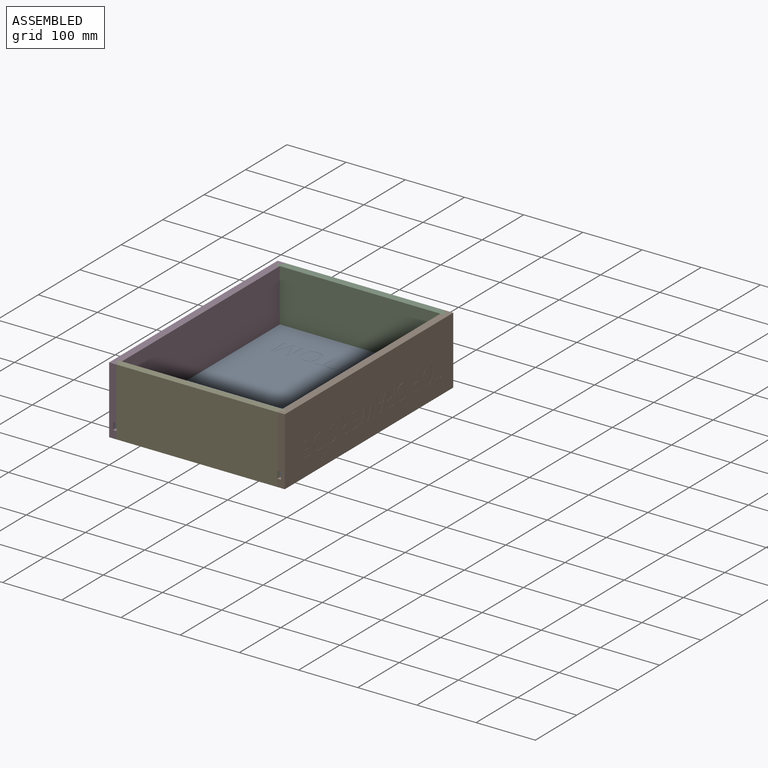
[diagram: assembled view]
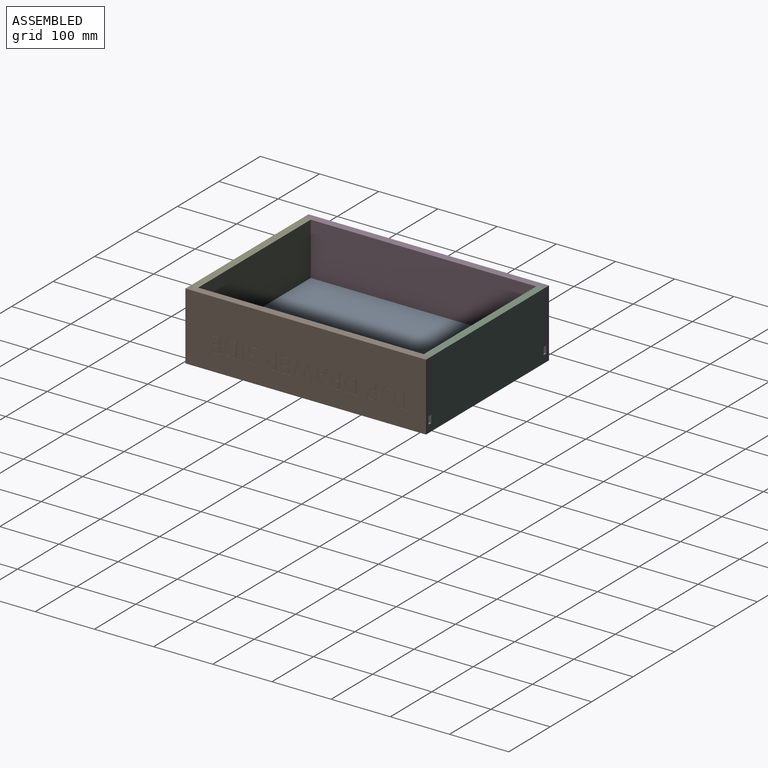
[diagram: assembled view, second angle]
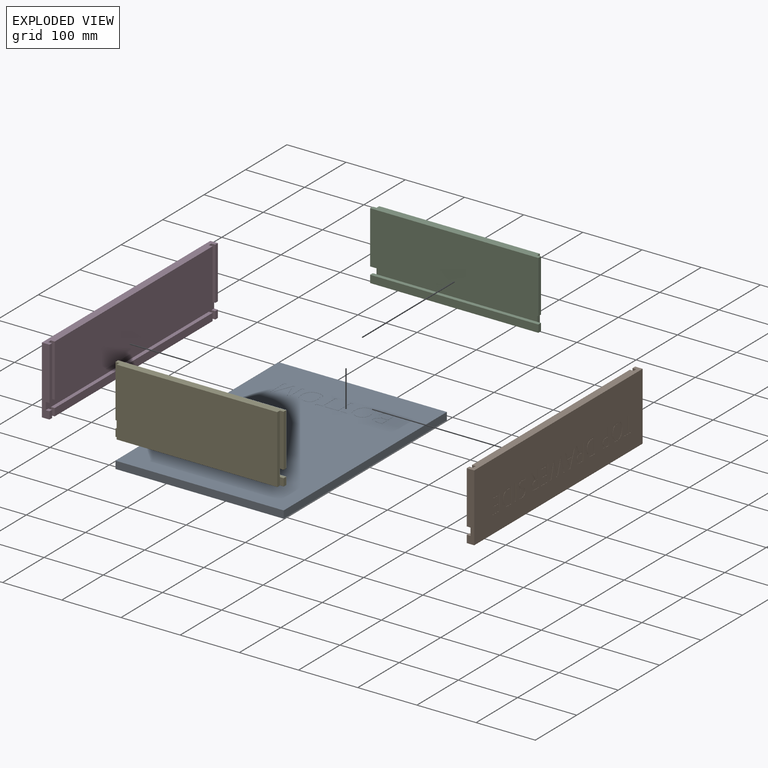
[diagram: exploded view]
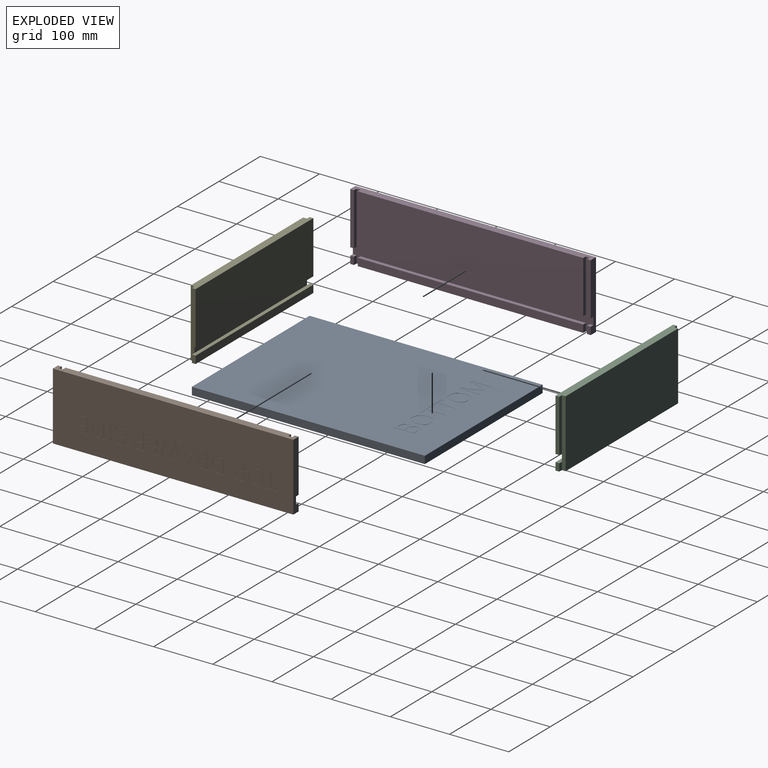
[diagram: exploded view, second angle]
ASSEMBLY  parts=5 mates=4
PART A: 107 faces, bbox 284.2x393.7x12.7 mm
  f0: plane 393.7x284.16mm, normal (0,0,1), area 108487.3mm2, adj f1,f2,f3,f4,f6,f7,f8,f9
  f1: plane 393.7x12.7mm, normal (1,0,0), area 5000mm2, adj f0,f2,f4,f5
  f2: plane 284.16x12.7mm, normal (0,1,0), area 3608.9mm2, adj f0,f1,f3,f5
  f3: plane 393.7x12.7mm, normal (-1,0,0), area 5000mm2, adj f0,f2,f4,f5
  f4: plane 284.16x12.7mm, normal (0,-1,0), area 3608.9mm2, adj f0,f1,f3,f5
  f5: plane 393.7x284.16mm, normal (0,0,-1), area 111874.8mm2, adj f1,f2,f3,f4
  f6: plane 3.93x0.25mm, normal (0,-1,0), area 1mm2, adj f0,f7,f13,f14
  f7: plane 30.31x0.25mm, normal (1,0,0), area 7.7mm2, adj f0,f6,f8,f14
  f8: plane 10.7x0.25mm, normal (0,-1,0), area 2.7mm2, adj f0,f7,f9,f14
  f9: plane 3.49x0.25mm, normal (1,0,0), area 0.9mm2, adj f0,f8,f10,f14
  f10: plane 25.34x0.25mm, normal (0,1,0), area 6.4mm2, adj f0,f9,f11,f14
  f11: plane 3.49x0.25mm, normal (-1,0,0), area 0.9mm2, adj f0,f10,f12,f14
  f12: plane 10.7x0.25mm, normal (0,-1,0), area 2.7mm2, adj f0,f11,f13,f14
  f13: plane 30.31x0.25mm, normal (-1,0,0), area 7.7mm2, adj f0,f6,f12,f14
  f14: plane 33.8x25.34mm, normal (0,0,1), area 207.5mm2, adj f6,f7,f8,f9,f10,f11,f12,f13
  f15: extruded ~10.42x2.93mm, area 2.8mm2, adj f16,f30,f31,f104
  f16: extruded ~10.32x2.93mm, area 2.8mm2, adj f15,f17,f31,f104
  f17: extruded ~8.54x3.55mm, area 2.4mm2, adj f16,f18,f31,f104
  f18: extruded ~8.45x3.53mm, area 2.4mm2, adj f17,f19,f31,f104
  f19: extruded ~10.35x2.86mm, area 2.8mm2, adj f18,f20,f31,f104
  f20: extruded ~10.43x2.87mm, area 2.8mm2, adj f19,f21,f31,f104
  f21: extruded ~8.48x3.54mm, area 2.4mm2, adj f20,f30,f31,f104
  f22: extruded ~12.76x4.11mm, area 3.5mm2, adj f0,f23,f29,f31
  f23: extruded ~12.76x4.09mm, area 3.5mm2, adj f0,f22,f24,f31
  f24: extruded ~11.38x4.62mm, area 3.2mm2, adj f0,f23,f25,f31
  f25: extruded ~11.55x4.54mm, area 3.3mm2, adj f0,f24,f26,f31
  f26: extruded ~12.8x4.07mm, area 3.5mm2, adj f0,f25,f27,f31
  f27: extruded ~12.89x4.06mm, area 3.5mm2, adj f0,f26,f28,f31
  f28: extruded ~11.52x4.57mm, area 3.2mm2, adj f0,f27,f29,f31
  f29: extruded ~11.41x4.65mm, area 3.2mm2, adj f0,f22,f28,f31
  f30: extruded ~8.5x3.55mm, area 2.4mm2, adj f15,f21,f31,f104
  f31: plane 34.8x31.09mm, normal (0,0,1), area 361.5mm2, adj f15,f16,f17,f18,f19,f20,f21,f22
  f32: extruded ~10.42x2.93mm, area 2.8mm2, adj f33,f47,f48,f105
  f33: extruded ~10.32x2.93mm, area 2.8mm2, adj f32,f34,f48,f105
  f34: extruded ~8.54x3.55mm, area 2.4mm2, adj f33,f35,f48,f105
  f35: extruded ~8.45x3.53mm, area 2.4mm2, adj f34,f36,f48,f105
  f36: extruded ~10.35x2.86mm, area 2.8mm2, adj f35,f37,f48,f105
  f37: extruded ~10.43x2.87mm, area 2.8mm2, adj f36,f38,f48,f105
  f38: extruded ~8.48x3.54mm, area 2.4mm2, adj f37,f47,f48,f105
  f39: extruded ~12.76x4.11mm, area 3.5mm2, adj f0,f40,f46,f48
  f40: extruded ~12.76x4.09mm, area 3.5mm2, adj f0,f39,f41,f48
  f41: extruded ~11.38x4.62mm, area 3.2mm2, adj f0,f40,f42,f48
  f42: extruded ~11.55x4.54mm, area 3.3mm2, adj f0,f41,f43,f48
  f43: extruded ~12.8x4.07mm, area 3.5mm2, adj f0,f42,f44,f48
  f44: extruded ~12.89x4.06mm, area 3.5mm2, adj f0,f43,f45,f48
  f45: extruded ~11.52x4.57mm, area 3.2mm2, adj f0,f44,f46,f48
  f46: extruded ~11.41x4.65mm, area 3.2mm2, adj f0,f39,f45,f48
  f47: extruded ~8.5x3.55mm, area 2.4mm2, adj f32,f38,f48,f105
  f48: plane 34.8x31.09mm, normal (0,0,1), area 361.5mm2, adj f32,f33,f34,f35,f36,f37,f38,f39
  f49: plane 29.96x11.47mm, normal (-0.93,-0.36,0), area 8.1mm2, adj f0,f50,f66,f67
  f50: plane 3.17x0.25mm, normal (0,-1,0), area 0.8mm2, adj f0,f49,f51,f67
  f51: plane 29.92x11.56mm, normal (0.93,-0.36,0), area 8.1mm2, adj f0,f50,f52,f67
  f52: plane 0.25x0.19mm, normal (0,-1,0), area 0mm2, adj f0,f51,f53,f67
  f53: extruded ~8.14x0.33mm, area 2.1mm2, adj f0,f52,f54,f67
  f54: plane 21.78x0.25mm, normal (-1,0,0), area 5.5mm2, adj f0,f53,f55,f67
  f55: plane 3.93x0.25mm, normal (0,-1,0), area 1mm2, adj f0,f54,f56,f67
  f56: plane 33.8x0.25mm, normal (1,0,0), area 8.6mm2, adj f0,f55,f57,f67
  f57: plane 5.87x0.25mm, normal (0,1,0), area 1.5mm2, adj f0,f56,f58,f67
  f58: plane 27.88x10.79mm, normal (-0.93,0.36,0), area 7.6mm2, adj f0,f57,f59,f67
  f59: plane 0.25x0.19mm, normal (0,1,0), area 0mm2, adj f0,f58,f60,f67
  f60: plane 27.88x10.7mm, normal (0.93,0.36,0), area 7.6mm2, adj f0,f59,f61,f67
  f61: plane 5.92x0.25mm, normal (0,1,0), area 1.5mm2, adj f0,f60,f62,f67
  f62: plane 33.8x0.25mm, normal (-1,0,0), area 8.6mm2, adj f0,f61,f63,f67
  f63: plane 3.63x0.25mm, normal (0,-1,0), area 0.9mm2, adj f0,f62,f64,f67
  f64: plane 21.5x0.25mm, normal (1,0,0), area 5.5mm2, adj f0,f63,f65,f67
  f65: extruded ~8.46x0.33mm, area 2.2mm2, adj f0,f64,f66,f67
  f66: plane 0.25x0.19mm, normal (0,-1,0), area 0mm2, adj f0,f49,f65,f67
  f67: plane 33.8x33.47mm, normal (0,0,1), area 488.5mm2, adj f49,f50,f51,f52,f53,f54,f55,f56
  f68: plane 3.93x0.25mm, normal (0,-1,0), area 1mm2, adj f0,f69,f75,f76
  f69: plane 30.31x0.25mm, normal (1,0,0), area 7.7mm2, adj f0,f68,f70,f76
  f70: plane 10.7x0.25mm, normal (0,-1,0), area 2.7mm2, adj f0,f69,f71,f76
  f71: plane 3.49x0.25mm, normal (1,0,0), area 0.9mm2, adj f0,f70,f72,f76
  f72: plane 25.34x0.25mm, normal (0,1,0), area 6.4mm2, adj f0,f71,f73,f76
  f73: plane 3.49x0.25mm, normal (-1,0,0), area 0.9mm2, adj f0,f72,f74,f76
  f74: plane 10.7x0.25mm, normal (0,-1,0), area 2.7mm2, adj f0,f73,f75,f76
  f75: plane 30.31x0.25mm, normal (-1,0,0), area 7.7mm2, adj f0,f68,f74,f76
  f76: plane 33.8x25.34mm, normal (0,0,1), area 207.5mm2, adj f68,f69,f70,f71,f72,f73,f74,f75
  f77: plane 12.65x0.25mm, normal (1,0,0), area 3.2mm2, adj f78,f101,f102,f106
  f78: plane 6.73x0.25mm, normal (0,-1,0), area 1.7mm2, adj f77,f79,f102,f106
  f79: extruded ~6.44x1.48mm, area 1.7mm2, adj f78,f80,f102,f106
  f80: extruded ~4.62x2.12mm, area 1.3mm2, adj f79,f81,f102,f106
  f81: extruded ~4.96x2.07mm, area 1.4mm2, adj f80,f82,f102,f106
  f82: extruded ~6.16x1.58mm, area 1.6mm2, adj f81,f101,f102,f106
  f83: plane 6.47x0.25mm, normal (0,1,0), area 1.6mm2, adj f84,f99,f102,f103
  f84: plane 11.07x0.25mm, normal (1,0,0), area 2.8mm2, adj f83,f85,f102,f103
  f85: plane 5.78x0.25mm, normal (0,-1,0), area 1.5mm2, adj f84,f86,f102,f103
  f86: extruded ~6.47x1.26mm, area 1.7mm2, adj f85,f87,f102,f103
  f87: extruded ~4.11x2.03mm, area 1.2mm2, adj f86,f88,f102,f103
  f88: extruded ~4.4x1.83mm, area 1.3mm2, adj f87,f99,f102,f103
  f89: plane 9.55x0.25mm, normal (0,1,0), area 2.4mm2, adj f0,f90,f100,f102
  f90: plane 33.8x0.25mm, normal (-1,0,0), area 8.6mm2, adj f0,f89,f91,f102
  f91: plane 11.79x0.25mm, normal (0,-1,0), area 3mm2, adj f0,f90,f92,f102
  f92: extruded ~8.57x2.54mm, area 2.3mm2, adj f0,f91,f93,f102
  f93: extruded ~7.07x3.06mm, area 2mm2, adj f0,f92,f94,f102
  f94: extruded ~8.09x7.7mm, area 3.1mm2, adj f0,f93,f95,f102
  f95: plane 0.25x0.23mm, normal (1,0,0), area 0.1mm2, adj f0,f94,f96,f102
  f96: extruded ~4.89x2.53mm, area 1.4mm2, adj f0,f95,f97,f102
  f97: extruded ~4.96x1.68mm, area 1.4mm2, adj f0,f96,f98,f102
  f98: extruded ~6.35x3.01mm, area 1.9mm2, adj f0,f97,f100,f102
  f99: extruded ~5.99x1.31mm, area 1.6mm2, adj f83,f88,f102,f103
  f100: extruded ~9.73x2.01mm, area 2.6mm2, adj f0,f89,f98,f102
  f101: plane 7.06x0.25mm, normal (0,1,0), area 1.8mm2, adj f77,f82,f102,f106
  f102: plane 33.8x23.42mm, normal (0,0,1), area 389.6mm2, adj f77,f78,f79,f80,f81,f82,f83,f84
  f103: plane 14.29x11.07mm, normal (0,0,1), area 144.5mm2, adj f83,f84,f85,f86,f87,f88,f99
  f104: plane 27.84x22.77mm, normal (0,0,1), area 525.5mm2, adj f15,f16,f17,f18,f19,f20,f21,f30
  f105: plane 27.84x22.77mm, normal (0,0,1), area 525.5mm2, adj f32,f33,f34,f35,f36,f37,f38,f47
  f106: plane 15.28x12.65mm, normal (0,0,1), area 176.1mm2, adj f77,f78,f79,f80,f81,f82,f101
PART B: 235 faces, bbox 12.7x406.4x114.3 mm
  f0: plane 406.4x114.3mm, normal (-1,0,0), area 42364.2mm2, adj f1,f2,f8,f9,f26,f27,f28,f29
  f1: plane 114.3x12.7mm, normal (0,1,0), area 1371mm2, adj f0,f2,f5,f6,f8,f20,f21,f25
  f2: plane 406.4x12.7mm, normal (0,0,-1), area 5080.6mm2, adj f0,f1,f3,f4,f5,f9,f15,f16
  f3: plane 12.7x6.35mm, normal (1,0,0), area 80.6mm2, adj f2,f9,f14,f15
  f4: plane 381x12.7mm, normal (1,0,0), area 4838.7mm2, adj f2,f16,f17,f18
  f5: plane 12.7x6.35mm, normal (1,0,0), area 80.6mm2, adj f1,f2,f19,f20
  f6: plane 88.9x6.35mm, normal (1,0,0), area 564.5mm2, adj f1,f8,f21,f22
  f7: plane 381x88.9mm, normal (1,0,0), area 33870.9mm2, adj f8,f11,f23,f24
  f8: plane 406.4x12.7mm, normal (0,0,1), area 5080.6mm2, adj f0,f1,f6,f7,f9,f10,f11,f12
  f9: plane 114.3x12.7mm, normal (0,-1,0), area 1371mm2, adj f0,f2,f3,f8,f10,f13,f14,f25
  f10: plane 88.9x6.35mm, normal (1,0,0), area 564.5mm2, adj f8,f9,f12,f13
  f11: plane 88.9x6.35mm, normal (0,-1,0), area 564.5mm2, adj f7,f8,f24,f25
  f12: plane 88.9x6.35mm, normal (0,1,0), area 564.5mm2, adj f8,f10,f13,f25
  f13: plane 6.35x6.35mm, normal (0,0,-1), area 40.3mm2, adj f9,f10,f12,f25
  f14: plane 6.35x6.35mm, normal (0,0,1), area 40.3mm2, adj f3,f9,f15,f25
  f15: plane 12.7x6.35mm, normal (0,1,0), area 80.6mm2, adj f2,f3,f14,f25
  f16: plane 12.7x6.35mm, normal (0,-1,0), area 80.6mm2, adj f2,f4,f17,f25
  f17: plane 381x6.35mm, normal (0,0,1), area 2419.3mm2, adj f4,f16,f18,f25
  f18: plane 12.7x6.35mm, normal (0,1,0), area 80.6mm2, adj f2,f4,f17,f25
  f19: plane 12.7x6.35mm, normal (0,-1,0), area 80.6mm2, adj f2,f5,f20,f25
  f20: plane 6.35x6.35mm, normal (0,0,1), area 40.3mm2, adj f1,f5,f19,f25
  f21: plane 6.35x6.35mm, normal (0,0,-1), area 40.3mm2, adj f1,f6,f22,f25
  f22: plane 88.9x6.35mm, normal (0,-1,0), area 564.5mm2, adj f6,f8,f21,f25
  f23: plane 88.9x6.35mm, normal (0,1,0), area 564.5mm2, adj f7,f8,f24,f25
  f24: plane 381x6.35mm, normal (0,0,-1), area 2419.3mm2, adj f7,f11,f23,f25
  f25: plane 406.4x114.3mm, normal (1,0,0), area 6451.6mm2, adj f1,f2,f8,f9,f11,f12,f13,f14
  f26: plane 15.57x0.25mm, normal (0,0,-1), area 4mm2, adj f0,f27,f37,f38
  f27: plane 2.9x0.25mm, normal (0,-1,0), area 0.7mm2, adj f0,f26,f28,f38
  f28: plane 12.32x0.25mm, normal (0,0,1), area 3.1mm2, adj f0,f27,f29,f38
  f29: plane 10.27x0.25mm, normal (0,-1,0), area 2.6mm2, adj f0,f28,f30,f38
  f30: plane 11.58x0.25mm, normal (0,0,-1), area 2.9mm2, adj f0,f29,f31,f38
  f31: plane 2.87x0.25mm, normal (0,-1,0), area 0.7mm2, adj f0,f30,f32,f38
  f32: plane 11.58x0.25mm, normal (0,0,1), area 2.9mm2, adj f0,f31,f33,f38
  f33: plane 9x0.25mm, normal (0,-1,0), area 2.3mm2, adj f0,f32,f34,f38
  f34: plane 12.32x0.25mm, normal (0,0,-1), area 3.1mm2, adj f0,f33,f35,f38
  f35: plane 2.88x0.25mm, normal (0,-1,0), area 0.7mm2, adj f0,f34,f36,f38
  f36: plane 15.57x0.25mm, normal (0,0,1), area 4mm2, adj f0,f35,f37,f38
  f37: plane 27.92x0.25mm, normal (0,1,0), area 7.1mm2, adj f0,f26,f36,f38
  f38: plane 27.97x15.66mm, normal (-1,0,0), area 195.1mm2, adj f26,f27,f28,f29,f30,f31,f32,f33
  f39: extruded ~8.61x2.39mm, area 2.3mm2, adj f40,f54,f55,f228
  f40: extruded ~8.52x2.44mm, area 2.3mm2, adj f39,f41,f55,f228
  f41: extruded ~7.07x2.91mm, area 2mm2, adj f40,f42,f55,f228
  f42: extruded ~6.97x2.93mm, area 2mm2, adj f41,f43,f55,f228
  f43: extruded ~8.55x2.33mm, area 2.3mm2, adj f42,f44,f55,f228
  f44: extruded ~8.61x2.4mm, area 2.3mm2, adj f43,f45,f55,f228
  f45: extruded ~7.02x2.9mm, area 2mm2, adj f44,f54,f55,f228
  f46: extruded ~10.54x3.43mm, area 2.9mm2, adj f0,f47,f53,f55
  f47: extruded ~10.55x3.35mm, area 2.9mm2, adj f0,f46,f48,f55
  f48: extruded ~9.39x3.85mm, area 2.7mm2, adj f0,f47,f49,f55
  f49: extruded ~9.56x3.72mm, area 2.7mm2, adj f0,f48,f50,f55
  f50: extruded ~10.56x3.4mm, area 2.9mm2, adj f0,f49,f51,f55
  f51: extruded ~10.66x3.32mm, area 2.9mm2, adj f0,f50,f52,f55
  f52: extruded ~9.51x3.8mm, area 2.7mm2, adj f0,f51,f53,f55
  f53: extruded ~9.44x3.81mm, area 2.7mm2, adj f0,f46,f52,f55
  f54: extruded ~7.01x2.96mm, area 2mm2, adj f39,f45,f55,f228
  f55: plane 28.79x25.73mm, normal (-1,0,0), area 246.7mm2, adj f39,f40,f41,f42,f43,f44,f45,f46
  f56: plane 2.93x0.25mm, normal (0,0,1), area 0.7mm2, adj f57,f70,f71,f229
  f57: plane 11.34x0.25mm, normal (0,-1,0), area 2.9mm2, adj f56,f58,f71,f229
  f58: plane 3.63x0.25mm, normal (0,0,-1), area 0.9mm2, adj f57,f59,f71,f229
  f59: extruded ~5.65x1.37mm, area 1.5mm2, adj f58,f60,f71,f229
  f60: extruded ~4.13x1.8mm, area 1.2mm2, adj f59,f61,f71,f229
  f61: extruded ~4.47x1.94mm, area 1.3mm2, adj f60,f70,f71,f229
  f62: extruded ~6.52x2.91mm, area 1.9mm2, adj f0,f63,f69,f71
  f63: extruded ~10.44x8.17mm, area 3.8mm2, adj f0,f62,f64,f71
  f64: plane 7.24x0.25mm, normal (0,0,1), area 1.8mm2, adj f0,f63,f65,f71
  f65: plane 27.92x0.25mm, normal (0,1,0), area 7.1mm2, adj f0,f64,f66,f71
  f66: plane 3.25x0.25mm, normal (0,0,-1), area 0.8mm2, adj f0,f65,f67,f71
  f67: plane 10.98x0.25mm, normal (0,-1,0), area 2.8mm2, adj f0,f66,f68,f71
  f68: plane 3.29x0.25mm, normal (0,0,-1), area 0.8mm2, adj f0,f67,f69,f71
  f69: extruded ~8.29x2.26mm, area 2.2mm2, adj f0,f62,f68,f71
  f70: extruded ~6.25x1.37mm, area 1.6mm2, adj f56,f61,f71,f229
  f71: plane 27.94x17.79mm, normal (-1,0,0), area 192.2mm2, adj f56,f57,f58,f59,f60,f61,f62,f63
  f72: extruded ~8.24x2.72mm, area 2.3mm2, adj f73,f85,f86,f230
  f73: extruded ~8.44x2.95mm, area 2.3mm2, adj f72,f74,f86,f230
  f74: extruded ~8.74x2.83mm, area 2.4mm2, adj f73,f75,f86,f230
  f75: plane 3.95x0.25mm, normal (0,0,1), area 1mm2, adj f74,f76,f86,f230
  f76: plane 22.31x0.25mm, normal (0,-1,0), area 5.7mm2, adj f75,f77,f86,f230
  f77: plane 4.72x0.25mm, normal (0,0,-1), area 1.2mm2, adj f76,f85,f86,f230
  f78: extruded ~10.56x3.79mm, area 2.9mm2, adj f0,f79,f84,f86
  f79: extruded ~10.1x3.58mm, area 2.8mm2, adj f0,f78,f80,f86
  f80: extruded ~10.11x3.64mm, area 2.8mm2, adj f0,f79,f81,f86
  f81: plane 8.56x0.25mm, normal (0,0,1), area 2.2mm2, adj f0,f80,f82,f86
  f82: plane 27.92x0.25mm, normal (0,1,0), area 7.1mm2, adj f0,f81,f83,f86
  f83: plane 7.74x0.25mm, normal (0,0,-1), area 2mm2, adj f0,f82,f84,f86
  f84: extruded ~10.81x3.62mm, area 3mm2, adj f0,f78,f83,f86
  f85: extruded ~8.14x2.79mm, area 2.2mm2, adj f72,f77,f86,f230
  f86: plane 27.97x22.36mm, normal (-1,0,0), area 246.7mm2, adj f72,f73,f74,f75,f76,f77,f78,f79
  f87: plane 27.92x0.25mm, normal (0,1,0), area 7.1mm2, adj f0,f88,f90,f91
  f88: plane 3.25x0.25mm, normal (0,0,-1), area 0.8mm2, adj f0,f87,f89,f91
  f89: plane 27.92x0.25mm, normal (0,-1,0), area 7.1mm2, adj f0,f88,f90,f91
  f90: plane 3.25x0.25mm, normal (0,0,1), area 0.8mm2, adj f0,f87,f89,f91
  f91: plane 27.94x3.33mm, normal (-1,0,0), area 90.6mm2, adj f87,f88,f89,f90
  f92: extruded ~5.74x2.69mm, area 1.7mm2, adj f0,f93,f116,f117
  f93: extruded ~4.66x1.64mm, area 1.3mm2, adj f0,f92,f94,f117
  f94: extruded ~6.03x3.38mm, area 1.8mm2, adj f0,f93,f95,f117
  f95: extruded ~3.88x1.72mm, area 1.1mm2, adj f0,f94,f96,f117
  f96: extruded ~1.8x1.71mm, area 0.6mm2, adj f0,f95,f97,f117
  f97: extruded ~2.38x0.53mm, area 0.6mm2, adj f0,f96,f98,f117
  f98: extruded ~3.07x1.46mm, area 0.9mm2, adj f0,f97,f99,f117
  f99: extruded ~4.03x1.09mm, area 1.1mm2, adj f0,f98,f100,f117
  f100: extruded ~6.72x1.47mm, area 1.8mm2, adj f0,f99,f101,f117
  f101: plane 2.82x1.02mm, normal (0,-0.94,-0.34), area 0.8mm2, adj f0,f100,f102,f117
  f102: extruded ~7.65x1.55mm, area 2mm2, adj f0,f101,f103,f117
  f103: extruded ~6.43x1.89mm, area 1.7mm2, adj f0,f102,f104,f117
  f104: extruded ~5.13x2.44mm, area 1.5mm2, adj f0,f103,f105,f117
  f105: extruded ~4.99x1.66mm, area 1.4mm2, adj f0,f104,f106,f117
  f106: extruded ~5.55x3.32mm, area 1.7mm2, adj f0,f105,f107,f117
  f107: extruded ~4.15x1.79mm, area 1.1mm2, adj f0,f106,f108,f117
  f108: extruded ~1.94x1.72mm, area 0.7mm2, adj f0,f107,f109,f117
  f109: extruded ~2.38x0.58mm, area 0.6mm2, adj f0,f108,f110,f117
  f110: extruded ~3.43x1.66mm, area 1mm2, adj f0,f109,f111,f117
  f111: extruded ~4.89x1.22mm, area 1.3mm2, adj f0,f110,f112,f117
  f112: extruded ~4.01x0.43mm, area 1mm2, adj f0,f111,f113,f117
  f113: extruded ~3.74x1.15mm, area 1mm2, adj f0,f112,f114,f117
  f114: plane 3.13x0.25mm, normal (0,1,0), area 0.8mm2, adj f0,f113,f115,f117
  f115: extruded ~7.64x1.31mm, area 2mm2, adj f0,f114,f116,f117
  f116: extruded ~7.26x2.04mm, area 2mm2, adj f0,f92,f115,f117
  f117: plane 28.73x17.6mm, normal (-1,0,0), area 180.5mm2, adj f92,f93,f94,f95,f96,f97,f98,f99
  f118: plane 15.57x0.25mm, normal (0,0,-1), area 4mm2, adj f0,f119,f129,f130
  f119: plane 2.9x0.25mm, normal (0,-1,0), area 0.7mm2, adj f0,f118,f120,f130
  f120: plane 12.32x0.25mm, normal (0,0,1), area 3.1mm2, adj f0,f119,f121,f130
  f121: plane 10.27x0.25mm, normal (0,-1,0), area 2.6mm2, adj f0,f120,f122,f130
  f122: plane 11.58x0.25mm, normal (0,0,-1), area 2.9mm2, adj f0,f121,f123,f130
  f123: plane 2.87x0.25mm, normal (0,-1,0), area 0.7mm2, adj f0,f122,f124,f130
  f124: plane 11.58x0.25mm, normal (0,0,1), area 2.9mm2, adj f0,f123,f125,f130
  f125: plane 9x0.25mm, normal (0,-1,0), area 2.3mm2, adj f0,f124,f126,f130
  f126: plane 12.32x0.25mm, normal (0,0,-1), area 3.1mm2, adj f0,f125,f127,f130
  f127: plane 2.88x0.25mm, normal (0,-1,0), area 0.7mm2, adj f0,f126,f128,f130
  f128: plane 15.57x0.25mm, normal (0,0,1), area 4mm2, adj f0,f127,f129,f130
  f129: plane 27.92x0.25mm, normal (0,1,0), area 7.1mm2, adj f0,f118,f128,f130
  f130: plane 27.97x15.66mm, normal (-1,0,0), area 195.1mm2, adj f118,f119,f120,f121,f122,f123,f124,f125
  f131: plane 3.21x0.25mm, normal (0,0,-1), area 0.8mm2, adj f0,f132,f150,f151
  f132: plane 27.9x7.56mm, normal (0,-0.97,-0.26), area 7.3mm2, adj f0,f131,f133,f151
  f133: plane 3.44x0.25mm, normal (0,0,1), area 0.9mm2, adj f0,f132,f134,f151
  f134: plane 17.2x4.45mm, normal (0,0.97,0.25), area 4.5mm2, adj f0,f133,f135,f151
  f135: extruded ~6.6x1.4mm, area 1.7mm2, adj f0,f134,f136,f151
  f136: extruded ~6.69x1.53mm, area 1.7mm2, adj f0,f135,f137,f151
  f137: plane 17.15x5.2mm, normal (0,-0.96,0.29), area 4.6mm2, adj f0,f136,f138,f151
  f138: plane 3.44x0.25mm, normal (0,0,1), area 0.9mm2, adj f0,f137,f139,f151
  f139: plane 16.96x5.05mm, normal (0,0.96,0.29), area 4.5mm2, adj f0,f138,f140,f151
  f140: extruded ~6.83x1.55mm, area 1.8mm2, adj f0,f139,f141,f151
  f141: extruded ~6.57x1.32mm, area 1.7mm2, adj f0,f140,f142,f151
  f142: plane 17.26x4.36mm, normal (0,-0.97,0.24), area 4.5mm2, adj f0,f141,f143,f151
  f143: plane 3.44x0.25mm, normal (0,0,1), area 0.9mm2, adj f0,f142,f144,f151
  f144: plane 27.95x7.34mm, normal (0,0.97,-0.25), area 7.3mm2, adj f0,f143,f145,f151
  f145: plane 3.21x0.25mm, normal (0,0,-1), area 0.8mm2, adj f0,f144,f146,f151
  f146: plane 18.57x5.52mm, normal (0,-0.96,-0.29), area 4.9mm2, adj f0,f145,f147,f151
  f147: extruded ~5.51x1.36mm, area 1.4mm2, adj f0,f146,f148,f151
  f148: extruded ~2.28x0.51mm, area 0.6mm2, adj f0,f147,f149,f151
  f149: extruded ~3.14x0.89mm, area 0.8mm2, adj f0,f148,f150,f151
  f150: plane 18.71x5.58mm, normal (0,0.96,-0.29), area 5mm2, adj f0,f131,f149,f151
  f151: plane 35.17x28.01mm, normal (-1,0,0), area 332.6mm2, adj f131,f132,f133,f134,f135,f136,f137,f138
  f152: plane 4.46x0.25mm, normal (0,0,1), area 1.1mm2, adj f153,f169,f170,f231
  f153: plane 10.68x0.25mm, normal (0,-1,0), area 2.7mm2, adj f152,f154,f170,f231
  f154: plane 4.22x0.25mm, normal (0,0,-1), area 1.1mm2, adj f153,f155,f170,f231
  f155: extruded ~5.24x1.24mm, area 1.4mm2, adj f154,f156,f170,f231
  f156: extruded ~4x1.62mm, area 1.1mm2, adj f155,f157,f170,f231
  f157: extruded ~4.09x1.62mm, area 1.2mm2, adj f156,f169,f170,f231
  f158: plane 11.61x0.25mm, normal (0,-1,0), area 2.9mm2, adj f0,f159,f168,f170
  f159: plane 5.83x0.25mm, normal (0,0,-1), area 1.5mm2, adj f0,f158,f160,f170
  f160: plane 11.63x6.72mm, normal (0,0.87,-0.5), area 3.4mm2, adj f0,f159,f161,f170
  f161: plane 3.84x0.25mm, normal (0,0,-1), area 1mm2, adj f0,f160,f162,f170
  f162: plane 12.57x7.55mm, normal (0,-0.86,0.51), area 3.7mm2, adj f0,f161,f163,f170
  f163: extruded ~7.47x5.64mm, area 2.6mm2, adj f0,f162,f164,f170
  f164: extruded ~5.93x2.44mm, area 1.7mm2, adj f0,f163,f165,f170
  f165: extruded ~7.59x1.99mm, area 2mm2, adj f0,f164,f166,f170
  f166: plane 7.66x0.25mm, normal (0,0,1), area 1.9mm2, adj f0,f165,f167,f170
  f167: plane 27.92x0.25mm, normal (0,1,0), area 7.1mm2, adj f0,f166,f168,f170
  f168: plane 3.25x0.25mm, normal (0,0,-1), area 0.8mm2, adj f0,f158,f167,f170
  f169: extruded ~5.04x1.35mm, area 1.4mm2, adj f152,f157,f170,f231
  f170: plane 27.99x19.67mm, normal (-1,0,0), area 233.8mm2, adj f152,f153,f154,f155,f156,f157,f158,f159
  f171: plane 8.66x3.22mm, normal (0,0.94,-0.35), area 2.3mm2, adj f172,f183,f184,f232
  f172: plane 9.03x0.25mm, normal (0,0,1), area 2.3mm2, adj f171,f173,f184,f232
  f173: plane 8.64x3.31mm, normal (0,-0.93,-0.36), area 2.4mm2, adj f172,f174,f184,f232
  f174: extruded ~4.02x1.22mm, area 1.1mm2, adj f173,f183,f184,f232
  f175: plane 8.89x3.45mm, normal (0,0.93,-0.36), area 2.4mm2, adj f0,f176,f182,f184
  f176: plane 3.36x0.25mm, normal (0,0,-1), area 0.9mm2, adj f0,f175,f177,f184
  f177: plane 28.08x10.89mm, normal (0,-0.93,0.36), area 7.6mm2, adj f0,f176,f178,f184
  f178: plane 2.73x0.25mm, normal (0,0,1), area 0.7mm2, adj f0,f177,f179,f184
  f179: plane 28.01x11.13mm, normal (0,0.93,0.37), area 7.7mm2, adj f0,f178,f180,f184
  f180: plane 3.29x0.25mm, normal (0,0,-1), area 0.8mm2, adj f0,f179,f181,f184
  f181: plane 8.87x3.46mm, normal (0,-0.93,-0.36), area 2.4mm2, adj f0,f180,f182,f184
  f182: plane 11.19x0.25mm, normal (0,0,-1), area 2.8mm2, adj f0,f175,f181,f184
  f183: extruded ~4.03x1.28mm, area 1.1mm2, adj f171,f174,f184,f232
  f184: plane 28.08x24.75mm, normal (-1,0,0), area 200.6mm2, adj f171,f172,f173,f174,f175,f176,f177,f178
  f185: plane 4.46x0.25mm, normal (0,0,1), area 1.1mm2, adj f186,f202,f203,f233
  f186: plane 10.68x0.25mm, normal (0,-1,0), area 2.7mm2, adj f185,f187,f203,f233
  f187: plane 4.22x0.25mm, normal (0,0,-1), area 1.1mm2, adj f186,f188,f203,f233
  f188: extruded ~5.24x1.24mm, area 1.4mm2, adj f187,f189,f203,f233
  f189: extruded ~4x1.62mm, area 1.1mm2, adj f188,f190,f203,f233
  f190: extruded ~4.09x1.62mm, area 1.2mm2, adj f189,f202,f203,f233
  f191: plane 11.61x0.25mm, normal (0,-1,0), area 2.9mm2, adj f0,f192,f201,f203
  f192: plane 5.83x0.25mm, normal (0,0,-1), area 1.5mm2, adj f0,f191,f193,f203
  f193: plane 11.63x6.72mm, normal (0,0.87,-0.5), area 3.4mm2, adj f0,f192,f194,f203
  f194: plane 3.84x0.25mm, normal (0,0,-1), area 1mm2, adj f0,f193,f195,f203
  f195: plane 12.57x7.55mm, normal (0,-0.86,0.51), area 3.7mm2, adj f0,f194,f196,f203
  f196: extruded ~7.47x5.64mm, area 2.6mm2, adj f0,f195,f197,f203
  f197: extruded ~5.93x2.44mm, area 1.7mm2, adj f0,f196,f198,f203
  f198: extruded ~7.59x1.99mm, area 2mm2, adj f0,f197,f199,f203
  f199: plane 7.66x0.25mm, normal (0,0,1), area 1.9mm2, adj f0,f198,f200,f203
  f200: plane 27.92x0.25mm, normal (0,1,0), area 7.1mm2, adj f0,f199,f201,f203
  f201: plane 3.25x0.25mm, normal (0,0,-1), area 0.8mm2, adj f0,f191,f200,f203
  f202: extruded ~5.04x1.35mm, area 1.4mm2, adj f185,f190,f203,f233
  f203: plane 27.99x19.67mm, normal (-1,0,0), area 233.8mm2, adj f185,f186,f187,f188,f189,f190,f191,f192
  f204: extruded ~8.24x2.72mm, area 2.3mm2, adj f205,f217,f218,f234
  f205: extruded ~8.44x2.95mm, area 2.3mm2, adj f204,f206,f218,f234
  f206: extruded ~8.74x2.83mm, area 2.4mm2, adj f205,f207,f218,f234
  f207: plane 3.95x0.25mm, normal (0,0,1), area 1mm2, adj f206,f208,f218,f234
  f208: plane 22.31x0.25mm, normal (0,-1,0), area 5.7mm2, adj f207,f209,f218,f234
  f209: plane 4.72x0.25mm, normal (0,0,-1), area 1.2mm2, adj f208,f217,f218,f234
  f210: extruded ~10.56x3.79mm, area 2.9mm2, adj f0,f211,f216,f218
  f211: extruded ~10.1x3.58mm, area 2.8mm2, adj f0,f210,f212,f218
  f212: extruded ~10.11x3.64mm, area 2.8mm2, adj f0,f211,f213,f218
  f213: plane 8.56x0.25mm, normal (0,0,1), area 2.2mm2, adj f0,f212,f214,f218
  f214: plane 27.92x0.25mm, normal (0,1,0), area 7.1mm2, adj f0,f213,f215,f218
  f215: plane 7.74x0.25mm, normal (0,0,-1), area 2mm2, adj f0,f214,f216,f218
  f216: extruded ~10.81x3.62mm, area 3mm2, adj f0,f210,f215,f218
  f217: extruded ~8.14x2.79mm, area 2.2mm2, adj f204,f209,f218,f234
  f218: plane 27.97x22.36mm, normal (-1,0,0), area 246.7mm2, adj f204,f205,f206,f207,f208,f209,f210,f211
  f219: plane 3.25x0.25mm, normal (0,0,-1), area 0.8mm2, adj f0,f220,f226,f227
  f220: plane 25.04x0.25mm, normal (0,-1,0), area 6.4mm2, adj f0,f219,f221,f227
  f221: plane 8.84x0.25mm, normal (0,0,-1), area 2.2mm2, adj f0,f220,f222,f227
  f222: plane 2.88x0.25mm, normal (0,-1,0), area 0.7mm2, adj f0,f221,f223,f227
  f223: plane 20.93x0.25mm, normal (0,0,1), area 5.3mm2, adj f0,f222,f224,f227
  f224: plane 2.88x0.25mm, normal (0,1,0), area 0.7mm2, adj f0,f223,f225,f227
  f225: plane 8.84x0.25mm, normal (0,0,-1), area 2.2mm2, adj f0,f224,f226,f227
  f226: plane 25.04x0.25mm, normal (0,1,0), area 6.4mm2, adj f0,f219,f225,f227
  f227: plane 27.96x20.94mm, normal (-1,0,0), area 141.7mm2, adj f219,f220,f221,f222,f223,f224,f225,f226
  f228: plane 23.03x18.85mm, normal (-1,0,0), area 358.7mm2, adj f39,f40,f41,f42,f43,f44,f45,f54
  f229: plane 11.37x11.13mm, normal (-1,0,0), area 111.9mm2, adj f56,f57,f58,f59,f60,f61,f70
  f230: plane 22.34x15.66mm, normal (-1,0,0), area 305.8mm2, adj f72,f73,f74,f75,f76,f77,f85
  f231: plane 11.13x10.7mm, normal (-1,0,0), area 107.1mm2, adj f152,f153,f154,f155,f156,f157,f169
  f232: plane 12.7x9.03mm, normal (-1,0,0), area 54.6mm2, adj f171,f172,f173,f174,f183
  f233: plane 11.13x10.7mm, normal (-1,0,0), area 107.1mm2, adj f185,f186,f187,f188,f189,f190,f202
  f234: plane 22.34x15.66mm, normal (-1,0,0), area 305.8mm2, adj f204,f205,f206,f207,f208,f209,f217
PART C: 18 faces, bbox 284.2x12.7x114.3 mm
  f0: plane 12.7x6.35mm, normal (1,0,0), area 80.6mm2, adj f7,f9,f11,f12
  f1: plane 88.9x6.35mm, normal (1,0,0), area 564.5mm2, adj f2,f8,f10,f13
  f2: plane 284.16x12.7mm, normal (0,0,1), area 3528.2mm2, adj f1,f4,f5,f8,f13,f14,f15,f17
  f3: plane 12.7x6.35mm, normal (-1,0,0), area 80.6mm2, adj f7,f9,f11,f16
  f4: plane 88.9x6.35mm, normal (-1,0,0), area 564.5mm2, adj f2,f8,f10,f15
  f5: plane 271.46x114.3mm, normal (0,1,0), area 31028.2mm2, adj f2,f7,f14,f17
  f6: plane 271.46x12.7mm, normal (0,-1,0), area 3447.6mm2, adj f10,f11,f14,f17
  f7: plane 284.16x12.7mm, normal (0,0,-1), area 3528.2mm2, adj f0,f3,f5,f9,f12,f14,f16,f17
  f8: plane 284.16x88.9mm, normal (0,-1,0), area 25262mm2, adj f1,f2,f4,f10
  f9: plane 284.16x12.7mm, normal (0,-1,0), area 3608.9mm2, adj f0,f3,f7,f11
  f10: plane 284.16x6.35mm, normal (0,0,-1), area 1804.4mm2, adj f1,f4,f6,f8,f13,f15
  f11: plane 284.16x6.35mm, normal (0,0,1), area 1804.4mm2, adj f0,f3,f6,f9,f12,f16
  f12: plane 12.7x6.35mm, normal (0,1,0), area 80.6mm2, adj f0,f7,f11,f14
  f13: plane 88.9x6.35mm, normal (0,1,0), area 564.5mm2, adj f1,f2,f10,f14
  f14: plane 114.3x6.35mm, normal (1,0,0), area 725.8mm2, adj f2,f5,f6,f7,f12,f13
  f15: plane 88.9x6.35mm, normal (0,1,0), area 564.5mm2, adj f2,f4,f10,f17
  f16: plane 12.7x6.35mm, normal (0,1,0), area 80.6mm2, adj f3,f7,f11,f17
  f17: plane 114.3x6.35mm, normal (-1,0,0), area 725.8mm2, adj f2,f5,f6,f7,f15,f16
PART D: same geometry as B
PART E: same geometry as C
PLACE A t=(-33.58,-22.7,-14.49)mm fixed
PLACE B rot(axis=(0,0,1),180deg) t=(114.85,-22.7,29.96)mm
PLACE C t=(-33.58,180.5,29.96)mm
PLACE D t=(-182.01,-22.7,29.96)mm
PLACE E rot(axis=(0,0,1),180deg) t=(-33.58,-225.9,29.96)mm
MATE fastened D.f25 <-> E.f1  axis (1,0,0) through (-175.66,-219.55,87.11)mm
MATE fastened B.f25 <-> C.f1  axis (-1,0,0) through (108.5,174.15,87.11)mm
MATE fastened C.f12 <-> A.f2  axis (0,-1,0) through (108.5,174.15,-14.49)mm
MATE fastened A.f4 <-> E.f12  axis (0,-1,0) through (-175.66,-219.55,-14.49)mm
